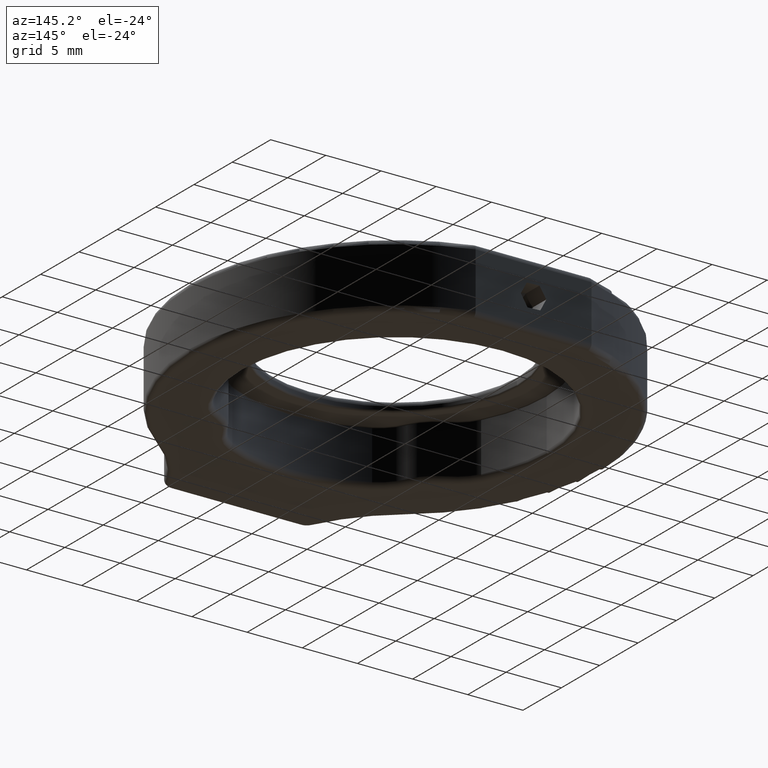
[diagram: clean part render]
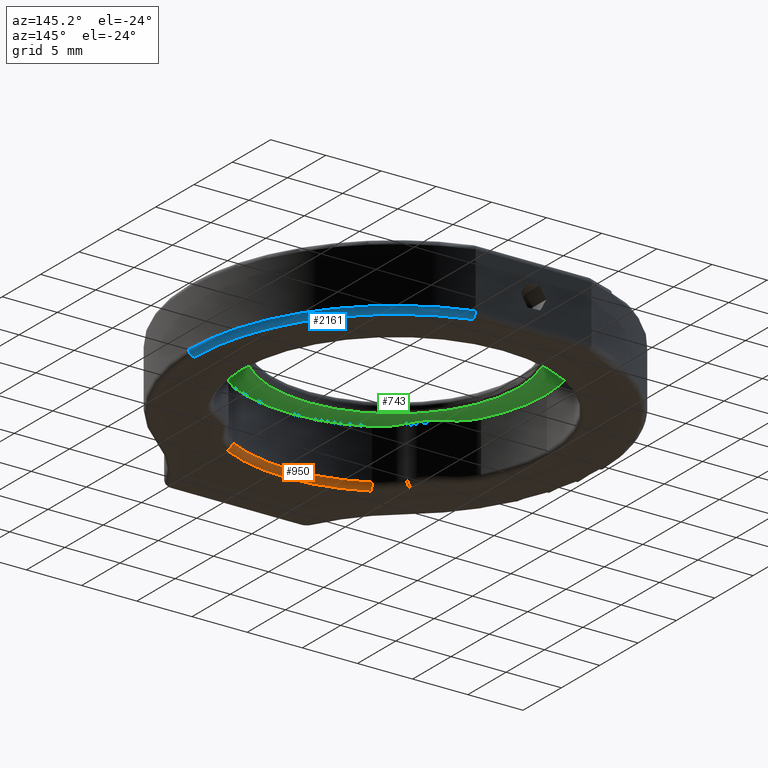
[diagram: same view with three faces highlighted in distinct colors, each labeled with its STEP entity id]
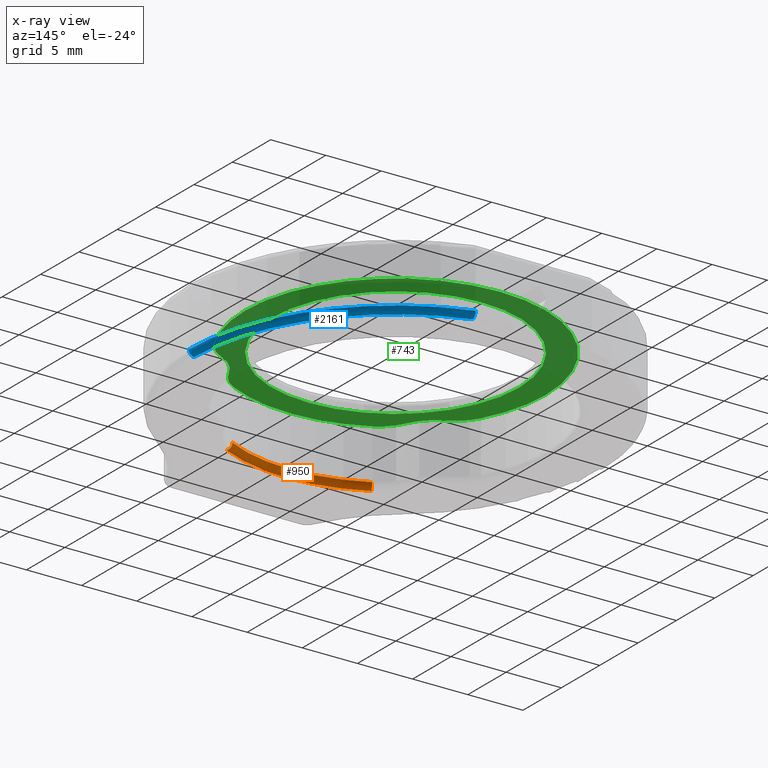
[diagram: x-ray of the same camera — body ghosted, the three highlighted faces saturated]
A machine part, auxiliary view with three faces highlighted in distinct colors.
The next image is the same camera in x-ray (body ghosted, the three faces saturated) — at least one of them is partly hidden behind the body in this view.
Their STEP definitions:

[orange] entity #950 — the highlighted toroidal blend (fillet) surface has major radius 14.2 mm and minor (blend) radius 0.5 mm.
#76 = VERTEX_POINT ( 'NONE', #1021 ) ;
#132 = DIRECTION ( 'NONE',  ( -0.0000000000000000000, 0.0000000000000000000, 1.000000000000000000 ) ) ;
#329 = DIRECTION ( 'NONE',  ( 0.8870355598556727300, -0.4617011106241067400, 0.0000000000000000000 ) ) ;
#440 = CIRCLE ( 'NONE', #2659, 0.5000000000000003300 ) ;
#486 = VERTEX_POINT ( 'NONE', #2124 ) ;
#582 = DIRECTION ( 'NONE',  ( 1.000000000000000000, 0.0000000000000000000, 0.0000000000000000000 ) ) ;
#598 = AXIS2_PLACEMENT_3D ( 'NONE', #1104, #2586, #925 ) ;
#604 = DIRECTION ( 'NONE',  ( 1.000000000000000000, 0.0000000000000000000, 0.0000000000000000000 ) ) ;
#727 = AXIS2_PLACEMENT_3D ( 'NONE', #2735, #1233, #604 ) ;
#742 = TOROIDAL_SURFACE ( 'NONE', #860, 14.19999999999999800, 0.5000000000000000000 ) ;
#749 = DIRECTION ( 'NONE',  ( 0.4617011106241060100, 0.8870355598556729500, 0.0000000000000000000 ) ) ;
#860 = AXIS2_PLACEMENT_3D ( 'NONE', #1874, #132, #582 ) ;
#925 = DIRECTION ( 'NONE',  ( 1.000000000000000000, 0.0000000000000000000, 0.0000000000000000000 ) ) ;
#950 = ADVANCED_FACE ( 'NONE', ( #1315 ), #742, .T. ) ;
#1021 = CARTESIAN_POINT ( 'NONE',  ( -3.888294756575584100, -10.01849954033444400, 38.99999999998591000 ) ) ;
#1104 = CARTESIAN_POINT ( 'NONE',  ( 2.667861014286739200, 2.577405409616099400, 38.99999999998591000 ) ) ;
#1185 = ORIENTED_EDGE ( 'NONE', *, *, #2430, .F. ) ;
#1233 = DIRECTION ( 'NONE',  ( 0.0000000000000000000, -0.0000000000000000000, -1.000000000000000000 ) ) ;
#1251 = ORIENTED_EDGE ( 'NONE', *, *, #2730, .F. ) ;
#1315 = FACE_OUTER_BOUND ( 'NONE', #1359, .T. ) ;
#1359 = EDGE_LOOP ( 'NONE', ( #2579, #2746, #1251, #1185 ) ) ;
#1533 = CARTESIAN_POINT ( 'NONE',  ( -3.657444201263531100, -9.574981760406608100, 39.49999999998591000 ) ) ;
#1584 = EDGE_CURVE ( 'NONE', #486, #2450, #2290, .T. ) ;
#1735 = CARTESIAN_POINT ( 'NONE',  ( 9.224016785149064600, -10.01849954033444100, 38.99999999998591000 ) ) ;
#1843 = CIRCLE ( 'NONE', #598, 14.19999999999999800 ) ;
#1874 = CARTESIAN_POINT ( 'NONE',  ( 2.667861014286739200, 2.577405409616099400, 39.49999999998591000 ) ) ;
#1918 = DIRECTION ( 'NONE',  ( 0.8870355598556727300, 0.4617011106241067400, 0.0000000000000000000 ) ) ;
#1939 = AXIS2_PLACEMENT_3D ( 'NONE', #2767, #1918, #2359 ) ;
#1994 = EDGE_CURVE ( 'NONE', #76, #2450, #440, .T. ) ;
#2047 = CIRCLE ( 'NONE', #1939, 0.5000000000000001100 ) ;
#2124 = CARTESIAN_POINT ( 'NONE',  ( 8.993166229837012100, -9.574981760406608100, 39.49999999998591000 ) ) ;
#2192 = VERTEX_POINT ( 'NONE', #1735 ) ;
#2280 = CARTESIAN_POINT ( 'NONE',  ( -3.888294756575584100, -10.01849954033444400, 39.49999999998591000 ) ) ;
#2290 = CIRCLE ( 'NONE', #727, 13.69999999999999800 ) ;
#2359 = DIRECTION ( 'NONE',  ( -0.4617011106241053500, 0.8870355598556732800, 0.0000000000000000000 ) ) ;
#2430 = EDGE_CURVE ( 'NONE', #76, #2192, #1843, .T. ) ;
#2450 = VERTEX_POINT ( 'NONE', #1533 ) ;
#2579 = ORIENTED_EDGE ( 'NONE', *, *, #1994, .T. ) ;
#2586 = DIRECTION ( 'NONE',  ( -0.0000000000000000000, 0.0000000000000000000, 1.000000000000000000 ) ) ;
#2659 = AXIS2_PLACEMENT_3D ( 'NONE', #2280, #329, #749 ) ;
#2730 = EDGE_CURVE ( 'NONE', #2192, #486, #2047, .T. ) ;
#2735 = CARTESIAN_POINT ( 'NONE',  ( 2.667861014286739200, 2.577405409616099400, 39.49999999998591000 ) ) ;
#2746 = ORIENTED_EDGE ( 'NONE', *, *, #1584, .F. ) ;
#2767 = CARTESIAN_POINT ( 'NONE',  ( 9.224016785149064600, -10.01849954033444100, 39.49999999998591000 ) ) ;

[blue] entity #2161 — the highlighted toroidal blend (fillet) surface has major radius 18.25 mm and minor (blend) radius 0.5 mm.
#36 = DIRECTION ( 'NONE',  ( -0.0000000000000000000, 0.0000000000000000000, 1.000000000000000000 ) ) ;
#149 = CARTESIAN_POINT ( 'NONE',  ( 7.845939808588747500, 20.07740540961609800, 38.99999999998591000 ) ) ;
#154 = CARTESIAN_POINT ( 'NONE',  ( 7.845939808588747500, 20.07740540961609800, 38.99999999998591000 ) ) ;
#230 = ORIENTED_EDGE ( 'NONE', *, *, #1268, .F. ) ;
#357 = DIRECTION ( 'NONE',  ( -0.0000000000000000000, 0.0000000000000000000, 1.000000000000000000 ) ) ;
#413 = CIRCLE ( 'NONE', #435, 0.5000000000000004400 ) ;
#435 = AXIS2_PLACEMENT_3D ( 'NONE', #1980, #455, #2398 ) ;
#455 = DIRECTION ( 'NONE',  ( 0.0000000000000000000, -1.000000000000000000, 0.0000000000000000000 ) ) ;
#458 = VERTEX_POINT ( 'NONE', #2332 ) ;
#501 = EDGE_CURVE ( 'NONE', #458, #1582, #2669, .T. ) ;
#578 = CARTESIAN_POINT ( 'NONE',  ( 7.917861014286740100, 20.57740540961610200, 39.36725361041315100 ) ) ;
#586 = CARTESIAN_POINT ( 'NONE',  ( 7.910035241370870600, 20.52254876956782000, 39.23762471591263100 ) ) ;
#677 = EDGE_CURVE ( 'NONE', #1328, #1872, #413, .T. ) ;
#693 = EDGE_CURVE ( 'NONE', #1582, #1328, #2070, .T. ) ;
#1015 = CARTESIAN_POINT ( 'NONE',  ( 2.667861014286739200, 2.577405409616099400, 39.49999999998591000 ) ) ;
#1100 = DIRECTION ( 'NONE',  ( 1.000000000000000000, 8.792434056320801700E-016, 0.0000000000000000000 ) ) ;
#1122 = ORIENTED_EDGE ( 'NONE', *, *, #693, .F. ) ;
#1125 = CARTESIAN_POINT ( 'NONE',  ( 2.667861014286739200, 2.577405409616099400, 39.49999999998591000 ) ) ;
#1139 = TOROIDAL_SURFACE ( 'NONE', #1768, 18.25000000000000400, 0.5000000000000000000 ) ;
#1161 = AXIS2_PLACEMENT_3D ( 'NONE', #1125, #36, #2628 ) ;
#1268 = EDGE_CURVE ( 'NONE', #1872, #458, #1345, .T. ) ;
#1280 = DIRECTION ( 'NONE',  ( 1.000000000000000000, 0.0000000000000000000, 0.0000000000000000000 ) ) ;
#1328 = VERTEX_POINT ( 'NONE', #2025 ) ;
#1345 = CIRCLE ( 'NONE', #1161, 18.75000000000000400 ) ;
#1486 = AXIS2_PLACEMENT_3D ( 'NONE', #2614, #1744, #1100 ) ;
#1582 = VERTEX_POINT ( 'NONE', #154 ) ;
#1672 = ORIENTED_EDGE ( 'NONE', *, *, #677, .F. ) ;
#1744 = DIRECTION ( 'NONE',  ( 0.0000000000000000000, -0.0000000000000000000, -1.000000000000000000 ) ) ;
#1768 = AXIS2_PLACEMENT_3D ( 'NONE', #1015, #357, #1280 ) ;
#1805 = ORIENTED_EDGE ( 'NONE', *, *, #501, .F. ) ;
#1868 = CARTESIAN_POINT ( 'NONE',  ( 7.917861014286740100, 20.57740540961609800, 39.49999999998591000 ) ) ;
#1872 = VERTEX_POINT ( 'NONE', #2200 ) ;
#1958 = FACE_OUTER_BOUND ( 'NONE', #2273, .T. ) ;
#1980 = CARTESIAN_POINT ( 'NONE',  ( 20.91786101428674300, 2.577405409616099400, 39.49999999998591000 ) ) ;
#2025 = CARTESIAN_POINT ( 'NONE',  ( 20.91786101428674300, 2.577405409616099400, 38.99999999998591000 ) ) ;
#2070 = CIRCLE ( 'NONE', #1486, 18.25000000000000400 ) ;
#2089 = CARTESIAN_POINT ( 'NONE',  ( 7.883533378992778400, 20.33778049546997800, 39.05368372729552800 ) ) ;
#2161 = ADVANCED_FACE ( 'NONE', ( #1958 ), #1139, .T. ) ;
#2200 = CARTESIAN_POINT ( 'NONE',  ( 21.41786101428674300, 2.577405409616099400, 39.49999999998591000 ) ) ;
#2273 = EDGE_LOOP ( 'NONE', ( #1672, #1122, #1805, #230 ) ) ;
#2332 = CARTESIAN_POINT ( 'NONE',  ( 7.917861014286740100, 20.57740540961609800, 39.49999999998591000 ) ) ;
#2398 = DIRECTION ( 'NONE',  ( 0.0000000000000000000, 0.0000000000000000000, -1.000000000000000000 ) ) ;
#2614 = CARTESIAN_POINT ( 'NONE',  ( 2.667861014286739200, 2.577405409616099400, 38.99999999998591000 ) ) ;
#2628 = DIRECTION ( 'NONE',  ( 1.000000000000000000, 0.0000000000000000000, 0.0000000000000000000 ) ) ;
#2669 = B_SPLINE_CURVE_WITH_KNOTS ( 'NONE', 3,
 ( #1868, #578, #586, #2089, #2760, #149 ),
 .UNSPECIFIED., .F., .F.,
 ( 4, 2, 4 ),
 ( 0.0000000000000000000, 0.0003925637380355108100, 0.0007851274760710216300 ),
 .UNSPECIFIED. ) ;
#2760 = CARTESIAN_POINT ( 'NONE',  ( 7.864695729224415300, 20.20691330296886400, 38.99999999998591700 ) ) ;

[green] entity #743 — the highlighted planar face has unit normal (-0, 0, 1).
#17 = DIRECTION ( 'NONE',  ( -0.0000000000000000000, 0.0000000000000000000, 1.000000000000000000 ) ) ;
#30 = CARTESIAN_POINT ( 'NONE',  ( 14.73154462832389900, -3.701729694871727100, 43.99999999998590300 ) ) ;
#38 = DIRECTION ( 'NONE',  ( 1.000000000000000000, 0.0000000000000000000, 0.0000000000000000000 ) ) ;
#59 = CIRCLE ( 'NONE', #1020, 3.900000000000000400 ) ;
#73 = VERTEX_POINT ( 'NONE', #2765 ) ;
#160 = ORIENTED_EDGE ( 'NONE', *, *, #681, .T. ) ;
#172 = CARTESIAN_POINT ( 'NONE',  ( 11.27210594488677300, -1.901095363437720300, 43.99999999998590300 ) ) ;
#181 = ORIENTED_EDGE ( 'NONE', *, *, #1694, .T. ) ;
#192 = DIRECTION ( 'NONE',  ( 1.000000000000000000, 0.0000000000000000000, 0.0000000000000000000 ) ) ;
#198 = CARTESIAN_POINT ( 'NONE',  ( 16.26786101428674100, 2.577405409616099400, 43.99999999998590300 ) ) ;
#212 = VERTEX_POINT ( 'NONE', #623 ) ;
#221 = CARTESIAN_POINT ( 'NONE',  ( 7.146361787340583600, -6.026839520983921600, 43.99999999998590300 ) ) ;
#318 = EDGE_CURVE ( 'NONE', #470, #1610, #1935, .T. ) ;
#323 = ORIENTED_EDGE ( 'NONE', *, *, #1968, .T. ) ;
#326 = CARTESIAN_POINT ( 'NONE',  ( 2.667861014286739200, 2.577405409616099400, 43.99999999998590300 ) ) ;
#350 = CARTESIAN_POINT ( 'NONE',  ( 2.667861014286739200, 2.577405409616099400, 43.99999999998590300 ) ) ;
#366 = CIRCLE ( 'NONE', #2426, 3.899999999999997700 ) ;
#404 = VERTEX_POINT ( 'NONE', #2753 ) ;
#412 = CARTESIAN_POINT ( 'NONE',  ( 12.83426962355424400, -5.474559318908955400, 43.99999999998590300 ) ) ;
#439 = VERTEX_POINT ( 'NONE', #1008 ) ;
#446 = FACE_OUTER_BOUND ( 'NONE', #628, .T. ) ;
#470 = VERTEX_POINT ( 'NONE', #602 ) ;
#545 = EDGE_CURVE ( 'NONE', #1777, #1035, #1422, .T. ) ;
#549 = CARTESIAN_POINT ( 'NONE',  ( 2.667861014286739200, 2.577405409616099400, 43.99999999998590300 ) ) ;
#556 = AXIS2_PLACEMENT_3D ( 'NONE', #172, #2140, #1050 ) ;
#572 = DIRECTION ( 'NONE',  ( 1.000000000000000000, 0.0000000000000000000, 0.0000000000000000000 ) ) ;
#580 = CIRCLE ( 'NONE', #1181, 4.100000000000000500 ) ;
#602 = CARTESIAN_POINT ( 'NONE',  ( -10.93213898571326200, 2.577405409616101200, 43.99999999998590300 ) ) ;
#612 = CARTESIAN_POINT ( 'NONE',  ( 2.667861014286739200, 2.577405409616099400, 43.99999999998590300 ) ) ;
#621 = AXIS2_PLACEMENT_3D ( 'NONE', #2018, #2657, #1601 ) ;
#623 = CARTESIAN_POINT ( 'NONE',  ( -7.498547594980761800, -5.474559318908955400, 43.99999999998590300 ) ) ;
#628 = EDGE_LOOP ( 'NONE', ( #1482, #752, #2305, #649, #753, #2419, #323, #723, #160, #181 ) ) ;
#649 = ORIENTED_EDGE ( 'NONE', *, *, #545, .T. ) ;
#674 = AXIS2_PLACEMENT_3D ( 'NONE', #350, #812, #2291 ) ;
#679 = DIRECTION ( 'NONE',  ( 1.000000000000000000, 0.0000000000000000000, 0.0000000000000000000 ) ) ;
#681 = EDGE_CURVE ( 'NONE', #1250, #212, #580, .T. ) ;
#684 = DIRECTION ( 'NONE',  ( 1.000000000000000000, -8.896017825522087600E-016, 0.0000000000000000000 ) ) ;
#699 = CARTESIAN_POINT ( 'NONE',  ( -9.140822231528616700, -9.231277836199227600, 43.99999999998590300 ) ) ;
#723 = ORIENTED_EDGE ( 'NONE', *, *, #1992, .T. ) ;
#729 = CARTESIAN_POINT ( 'NONE',  ( 10.71982574281181900, -7.589003199651378900, 43.99999999998590300 ) ) ;
#730 = DIRECTION ( 'NONE',  ( 0.0000000000000000000, -0.0000000000000000000, -1.000000000000000000 ) ) ;
#738 = DIRECTION ( 'NONE',  ( 1.000000000000000000, 0.0000000000000000000, 0.0000000000000000000 ) ) ;
#743 = ADVANCED_FACE ( 'NONE', ( #980, #446 ), #1312, .F. ) ;
#752 = ORIENTED_EDGE ( 'NONE', *, *, #318, .T. ) ;
#753 = ORIENTED_EDGE ( 'NONE', *, *, #2618, .T. ) ;
#766 = AXIS2_PLACEMENT_3D ( 'NONE', #1990, #17, #38 ) ;
#769 = CARTESIAN_POINT ( 'NONE',  ( 2.667861014286739200, 2.577405409616099400, 43.99999999998590300 ) ) ;
#772 = CIRCLE ( 'NONE', #674, 13.60000000000000100 ) ;
#812 = DIRECTION ( 'NONE',  ( 0.0000000000000000000, -0.0000000000000000000, -1.000000000000000000 ) ) ;
#830 = EDGE_CURVE ( 'NONE', #1912, #470, #2361, .T. ) ;
#843 = AXIS2_PLACEMENT_3D ( 'NONE', #326, #2276, #572 ) ;
#864 = CARTESIAN_POINT ( 'NONE',  ( 8.946996118774599400, -9.486278204421038800, 43.99999999998590300 ) ) ;
#879 = DIRECTION ( 'NONE',  ( 1.000000000000000000, 0.0000000000000000000, 0.0000000000000000000 ) ) ;
#899 = EDGE_CURVE ( 'NONE', #439, #404, #1996, .T. ) ;
#976 = DIRECTION ( 'NONE',  ( 1.000000000000000000, 0.0000000000000000000, 0.0000000000000000000 ) ) ;
#980 = FACE_BOUND ( 'NONE', #1289, .T. ) ;
#986 = EDGE_CURVE ( 'NONE', #404, #439, #2532, .T. ) ;
#1008 = CARTESIAN_POINT ( 'NONE',  ( 13.86786101428673800, 2.577405409616099400, 43.99999999998590300 ) ) ;
#1020 = AXIS2_PLACEMENT_3D ( 'NONE', #1517, #1966, #684 ) ;
#1035 = VERTEX_POINT ( 'NONE', #412 ) ;
#1050 = DIRECTION ( 'NONE',  ( 1.000000000000000000, 0.0000000000000000000, 0.0000000000000000000 ) ) ;
#1123 = EDGE_CURVE ( 'NONE', #2539, #2239, #1274, .T. ) ;
#1160 = CIRCLE ( 'NONE', #2326, 4.100000000000001400 ) ;
#1181 = AXIS2_PLACEMENT_3D ( 'NONE', #699, #2623, #679 ) ;
#1250 = VERTEX_POINT ( 'NONE', #1792 ) ;
#1274 = CIRCLE ( 'NONE', #1985, 3.899999999999997200 ) ;
#1289 = EDGE_LOOP ( 'NONE', ( #1837, #1711 ) ) ;
#1312 = PLANE ( 'NONE',  #766 ) ;
#1402 = DIRECTION ( 'NONE',  ( 1.000000000000000000, 0.0000000000000000000, 0.0000000000000000000 ) ) ;
#1422 = CIRCLE ( 'NONE', #556, 3.900000000000000800 ) ;
#1471 = EDGE_CURVE ( 'NONE', #1610, #1777, #772, .T. ) ;
#1482 = ORIENTED_EDGE ( 'NONE', *, *, #830, .T. ) ;
#1517 = CARTESIAN_POINT ( 'NONE',  ( -5.936383916313291200, -1.901095363437721000, 43.99999999998590300 ) ) ;
#1601 = DIRECTION ( 'NONE',  ( 1.000000000000000000, 3.539601210173264200E-015, 0.0000000000000000000 ) ) ;
#1610 = VERTEX_POINT ( 'NONE', #198 ) ;
#1650 = CIRCLE ( 'NONE', #1709, 13.59999999999999800 ) ;
#1694 = EDGE_CURVE ( 'NONE', #212, #1912, #59, .T. ) ;
#1709 = AXIS2_PLACEMENT_3D ( 'NONE', #769, #730, #2692 ) ;
#1711 = ORIENTED_EDGE ( 'NONE', *, *, #986, .T. ) ;
#1777 = VERTEX_POINT ( 'NONE', #30 ) ;
#1792 = CARTESIAN_POINT ( 'NONE',  ( -5.384103714238341900, -7.589003199651384300, 43.99999999998590300 ) ) ;
#1837 = ORIENTED_EDGE ( 'NONE', *, *, #899, .T. ) ;
#1912 = VERTEX_POINT ( 'NONE', #2211 ) ;
#1914 = DIRECTION ( 'NONE',  ( -0.0000000000000000000, 0.0000000000000000000, 1.000000000000000000 ) ) ;
#1935 = CIRCLE ( 'NONE', #2596, 13.60000000000000100 ) ;
#1966 = DIRECTION ( 'NONE',  ( 0.0000000000000000000, -0.0000000000000000000, -1.000000000000000000 ) ) ;
#1968 = EDGE_CURVE ( 'NONE', #2239, #73, #1650, .T. ) ;
#1985 = AXIS2_PLACEMENT_3D ( 'NONE', #221, #2599, #879 ) ;
#1990 = CARTESIAN_POINT ( 'NONE',  ( 2.667861014286739200, 2.577405409616099400, 43.99999999998590300 ) ) ;
#1992 = EDGE_CURVE ( 'NONE', #73, #1250, #366, .T. ) ;
#1996 = CIRCLE ( 'NONE', #843, 11.19999999999999900 ) ;
#2005 = AXIS2_PLACEMENT_3D ( 'NONE', #612, #1914, #192 ) ;
#2018 = CARTESIAN_POINT ( 'NONE',  ( 2.667861014286739200, 2.577405409616099400, 43.99999999998590300 ) ) ;
#2077 = DIRECTION ( 'NONE',  ( -0.0000000000000000000, 0.0000000000000000000, 1.000000000000000000 ) ) ;
#2140 = DIRECTION ( 'NONE',  ( 0.0000000000000000000, -0.0000000000000000000, -1.000000000000000000 ) ) ;
#2211 = CARTESIAN_POINT ( 'NONE',  ( -9.395822599750422600, -3.701729694871722700, 43.99999999998590300 ) ) ;
#2239 = VERTEX_POINT ( 'NONE', #864 ) ;
#2276 = DIRECTION ( 'NONE',  ( -0.0000000000000000000, 0.0000000000000000000, 1.000000000000000000 ) ) ;
#2291 = DIRECTION ( 'NONE',  ( 1.000000000000000000, 0.0000000000000000000, 0.0000000000000000000 ) ) ;
#2305 = ORIENTED_EDGE ( 'NONE', *, *, #1471, .T. ) ;
#2326 = AXIS2_PLACEMENT_3D ( 'NONE', #2684, #2077, #738 ) ;
#2361 = CIRCLE ( 'NONE', #621, 13.60000000000000100 ) ;
#2419 = ORIENTED_EDGE ( 'NONE', *, *, #1123, .T. ) ;
#2426 = AXIS2_PLACEMENT_3D ( 'NONE', #2714, #2485, #976 ) ;
#2485 = DIRECTION ( 'NONE',  ( 0.0000000000000000000, -0.0000000000000000000, -1.000000000000000000 ) ) ;
#2532 = CIRCLE ( 'NONE', #2005, 11.19999999999999900 ) ;
#2539 = VERTEX_POINT ( 'NONE', #729 ) ;
#2596 = AXIS2_PLACEMENT_3D ( 'NONE', #549, #2702, #1402 ) ;
#2599 = DIRECTION ( 'NONE',  ( 0.0000000000000000000, -0.0000000000000000000, -1.000000000000000000 ) ) ;
#2618 = EDGE_CURVE ( 'NONE', #1035, #2539, #1160, .T. ) ;
#2623 = DIRECTION ( 'NONE',  ( -0.0000000000000000000, 0.0000000000000000000, 1.000000000000000000 ) ) ;
#2657 = DIRECTION ( 'NONE',  ( 0.0000000000000000000, -0.0000000000000000000, -1.000000000000000000 ) ) ;
#2684 = CARTESIAN_POINT ( 'NONE',  ( 14.47654426010209900, -9.231277836199225800, 43.99999999998590300 ) ) ;
#2692 = DIRECTION ( 'NONE',  ( 1.000000000000000000, 0.0000000000000000000, 0.0000000000000000000 ) ) ;
#2702 = DIRECTION ( 'NONE',  ( 0.0000000000000000000, -0.0000000000000000000, -1.000000000000000000 ) ) ;
#2714 = CARTESIAN_POINT ( 'NONE',  ( -1.810639758767102400, -6.026839520983921600, 43.99999999998590300 ) ) ;
#2753 = CARTESIAN_POINT ( 'NONE',  ( -8.532138985713260100, 2.577405409616100800, 43.99999999998590300 ) ) ;
#2765 = CARTESIAN_POINT ( 'NONE',  ( -3.611274090201120200, -9.486278204421042300, 43.99999999998590300 ) ) ;